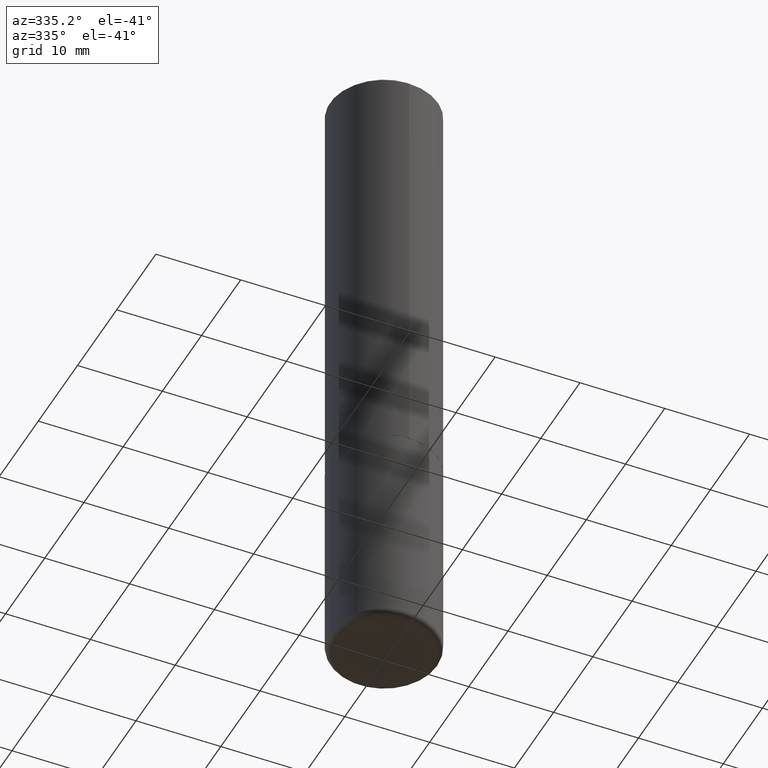
[diagram: clean part render]
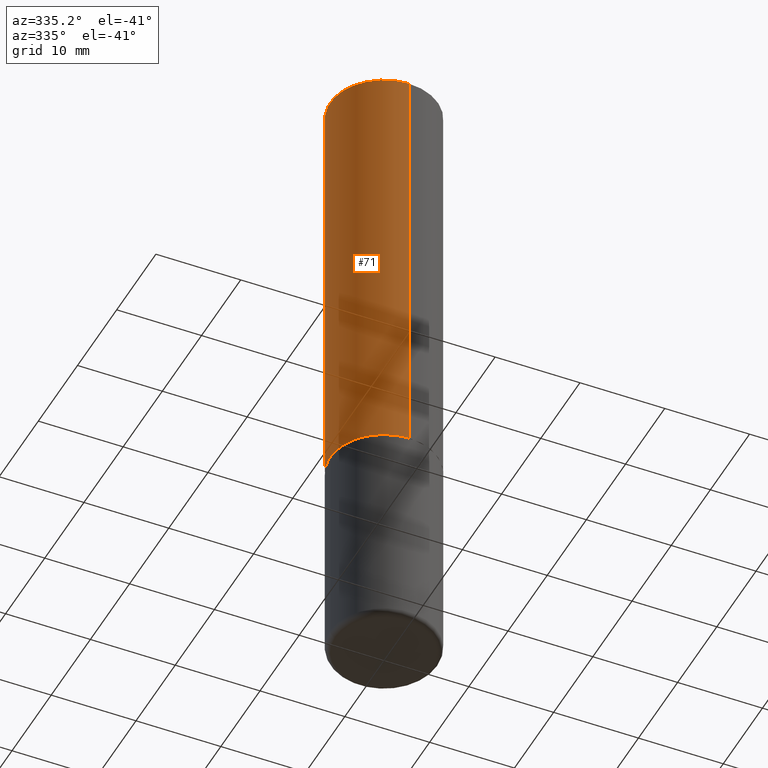
[diagram: same view with one face highlighted and labeled with its STEP entity id]
A machine part, auxiliary view. The second image highlights one B-rep face of the part: STEP entity #71.
In plain terms, the highlighted cylindrical surface (partial cylindrical patch) has radius 6.35 mm, axis along (-0, 0, 1).
Its self-contained STEP definition (entity closure, byte-faithful):
#16 = DIRECTION ( 'NONE',  ( -6.982962677686266711E-15, -1.000000000000000000, 3.278217592397113101E-15 ) ) ;
#65 = VECTOR ( 'NONE', #242, 39.37007874015748143 ) ;
#70 = ORIENTED_EDGE ( 'NONE', *, *, #233, .T. ) ;
#71 = ADVANCED_FACE ( 'NONE', ( #265 ), #194, .T. ) ;
#125 = CARTESIAN_POINT ( 'NONE',  ( 4.887759915075037439E-29, -6.980519789219626565E-15, -1.999000000000000110 ) ) ;
#135 = EDGE_CURVE ( 'NONE', #218, #199, #278, .T. ) ;
#137 = VERTEX_POINT ( 'NONE', #210 ) ;
#139 = ORIENTED_EDGE ( 'NONE', *, *, #135, .F. ) ;
#140 = CARTESIAN_POINT ( 'NONE',  ( 0.000000000000000000, 0.000000000000000000, 0.000000000000000000 ) ) ;
#147 = AXIS2_PLACEMENT_3D ( 'NONE', #125, #247, #16 ) ;
#155 = LINE ( 'NONE', #413, #261 ) ;
#169 = CIRCLE ( 'NONE', #147, 0.2500000000000002220 ) ;
#191 = EDGE_CURVE ( 'NONE', #199, #393, #217, .T. ) ;
#193 = ORIENTED_EDGE ( 'NONE', *, *, #290, .T. ) ;
#194 = CYLINDRICAL_SURFACE ( 'NONE', #239, 0.2500000000000001110 ) ;
#198 = EDGE_LOOP ( 'NONE', ( #139, #70, #193, #259 ) ) ;
#199 = VERTEX_POINT ( 'NONE', #400 ) ;
#208 = CARTESIAN_POINT ( 'NONE',  ( 4.890205017583842726E-31, -6.984011795117202972E-17, -0.02000000000000005593 ) ) ;
#210 = CARTESIAN_POINT ( 'NONE',  ( -1.745740669421519346E-15, -0.2500000000000072164, -1.998999999999999444 ) ) ;
#212 = CARTESIAN_POINT ( 'NONE',  ( 1.776356839400276103E-15, 0.2499999999999933109, -1.999000000000000998 ) ) ;
#217 = CIRCLE ( 'NONE', #267, 0.2500000000000000555 ) ;
#218 = VERTEX_POINT ( 'NONE', #212 ) ;
#224 = CARTESIAN_POINT ( 'NONE',  ( -1.715124499442882496E-15, -0.2500000000000001110, -0.01999999999999918163 ) ) ;
#233 = EDGE_CURVE ( 'NONE', #218, #137, #169, .T. ) ;
#239 = AXIS2_PLACEMENT_3D ( 'NONE', #140, #318, #264 ) ;
#242 = DIRECTION ( 'NONE',  ( -2.445102508791914532E-29, 3.492005897558592710E-15, 1.000000000000000000 ) ) ;
#247 = DIRECTION ( 'NONE',  ( -2.445102508791914532E-29, 3.492005897558592316E-15, 1.000000000000000000 ) ) ;
#259 = ORIENTED_EDGE ( 'NONE', *, *, #191, .F. ) ;
#261 = VECTOR ( 'NONE', #404, 39.37007874015748143 ) ;
#264 = DIRECTION ( 'NONE',  ( -6.982962677686266711E-15, -1.000000000000000000, 3.492005897558592710E-15 ) ) ;
#265 = FACE_OUTER_BOUND ( 'NONE', #198, .T. ) ;
#267 = AXIS2_PLACEMENT_3D ( 'NONE', #208, #302, #327 ) ;
#278 = LINE ( 'NONE', #369, #65 ) ;
#290 = EDGE_CURVE ( 'NONE', #137, #393, #155, .T. ) ;
#302 = DIRECTION ( 'NONE',  ( -2.445102508791914532E-29, 3.492005897558592316E-15, 1.000000000000000000 ) ) ;
#318 = DIRECTION ( 'NONE',  ( -2.445102508791914532E-29, 3.492005897558592316E-15, 1.000000000000000000 ) ) ;
#327 = DIRECTION ( 'NONE',  ( -6.982962677686265133E-15, -1.000000000000000000, 3.500180241882336472E-15 ) ) ;
#369 = CARTESIAN_POINT ( 'NONE',  ( 1.776356839400251254E-15, 0.2500000000000001110, -8.730014743896485719E-16 ) ) ;
#393 = VERTEX_POINT ( 'NONE', #224 ) ;
#400 = CARTESIAN_POINT ( 'NONE',  ( 1.745740669421567269E-15, 0.2499999999999999722, -0.02000000000000093023 ) ) ;
#404 = DIRECTION ( 'NONE',  ( -2.445102508791914532E-29, 3.492005897558592710E-15, 1.000000000000000000 ) ) ;
#413 = CARTESIAN_POINT ( 'NONE',  ( -1.745740669421567467E-15, -0.2500000000000001110, 8.730014743896485719E-16 ) ) ;